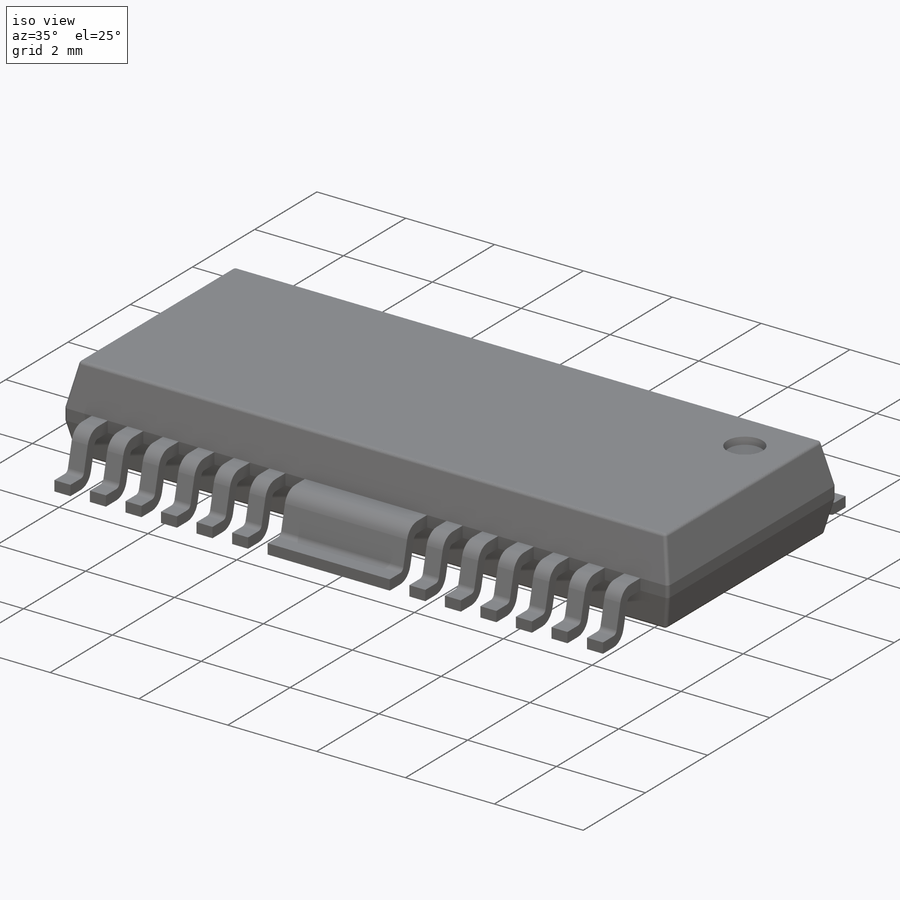
[diagram: iso view]
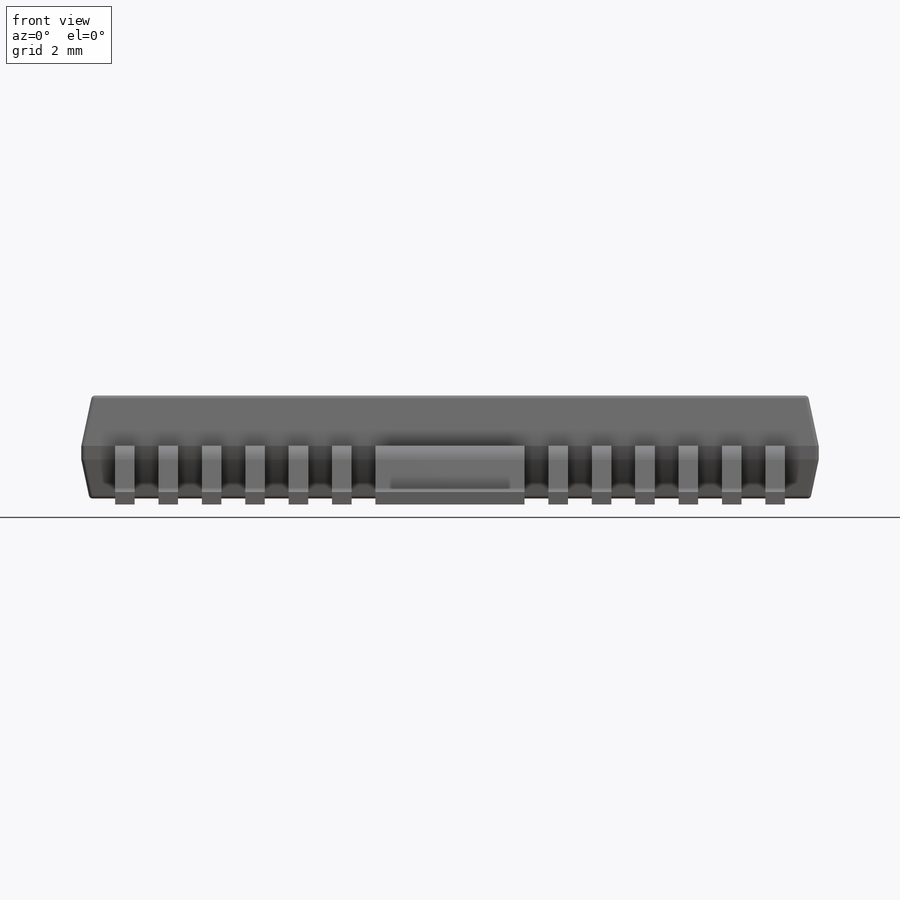
[diagram: front view]
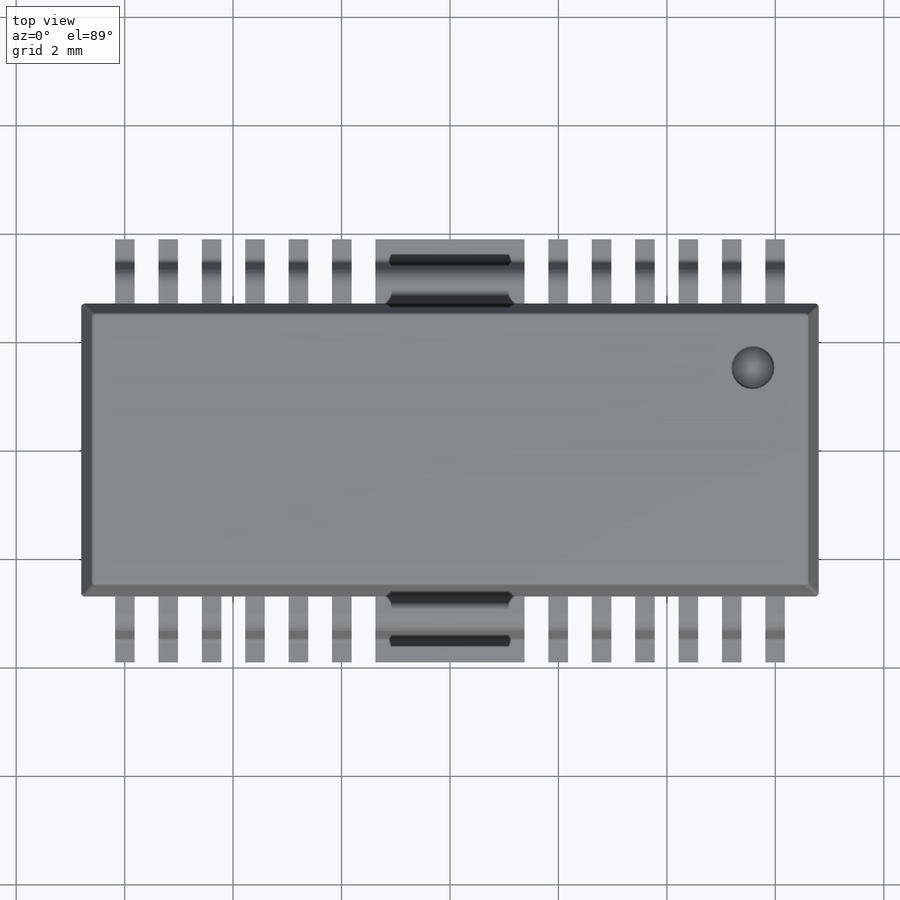
[diagram: top view]
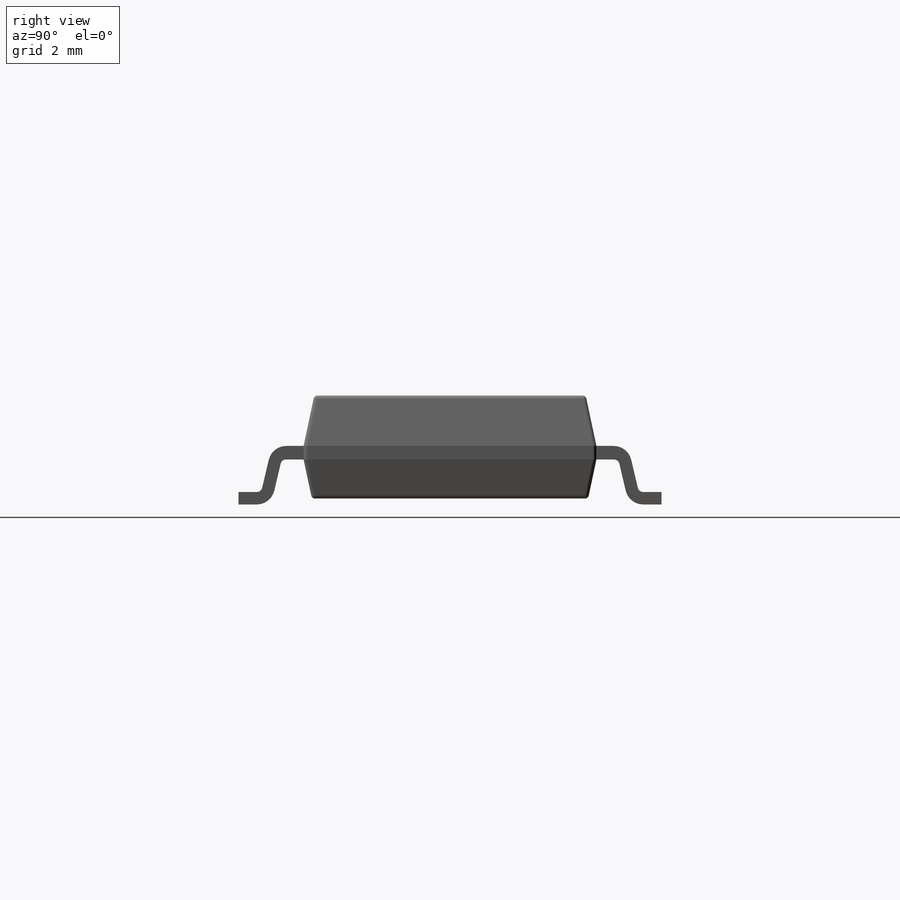
[diagram: right view]
SOLIDWORKS PART (.sldprt)
format: sldprt  version: not decoded by parser v0  size: 914,432 bytes
history: native  units: mm
features: sketch x7, extrude x5, plane x3, fillet x3, pattern_linear x2, material x1, cut_extrude x1 (+12 scaffold rows collapsed)
feature tree (34):
  scaffold x12  (default folders/planes/origin — collapsed)
  material  "Material <not specified>"
  plane  "Plane1"  Offset=1.995mm
  plane  "Plane2"  Offset=1.995mm
  sketch  "Sketch1"  dims[D1=13.6mm D2=5.4mm D3=6.8mm D4=2.7mm]
  extrude  "Extrude1"  Depth=0.93mm
  sketch  "Sketch2"  dims[D1=0.0mm]
  extrude  "Extrude2"  Depth=0.72mm
  sketch  "Sketch3"  dims[D1=~0.317462mm]
  cut_extrude  "Cut-Extrude1"  Depth=0.15mm
  sketch  "Sketch4"  dims[c1.D1=0.3mm c1.D2=7.8mm c1.D3=3.9mm c1.D4=0.11mm c1.D5=0.23mm c1.D6=98.0deg c2.D6=0.23mm c3.D6=98.0deg c4.D6=0.23mm c4.D7=0.6mm c4.D8=0.2mm]
  extrude  "Extrude3"  Depth=0.18mm
  pattern_linear  "LPattern3"  Count1=1 Count2=6 Spacing1=0.8mm Spacing2=0.8mm
  sketch  "Sketch5"  dims[D1=0.0mm]
  sketch  "Sketch6"  dims[D1=0.0mm]
  extrude  "Extrude5"  Depth=1.375mm
  extrude  "Extrude6"  Depth=0.18mm
  pattern_linear  "LPattern4"  Count1=6 Count2=1 Spacing1=0.8mm Spacing2=2.3mm
  fillet  "Fillet2"  Radius=0.33mm
  fillet  "Fillet1"  Radius=0.1mm
  fillet  "Fillet3"  Radius=0.07mm
  plane  "Board Surface"  Offset=1.08mm
  sketch  "Component_Outline"  dims[D1=~0.068487mm]
decode coverage: 18 of 18 modeling features carry decoded parameters
note: ~ marks probable driven/reference dimensions
note: suppression state not decoded; provenance and decode notes live in map.json
